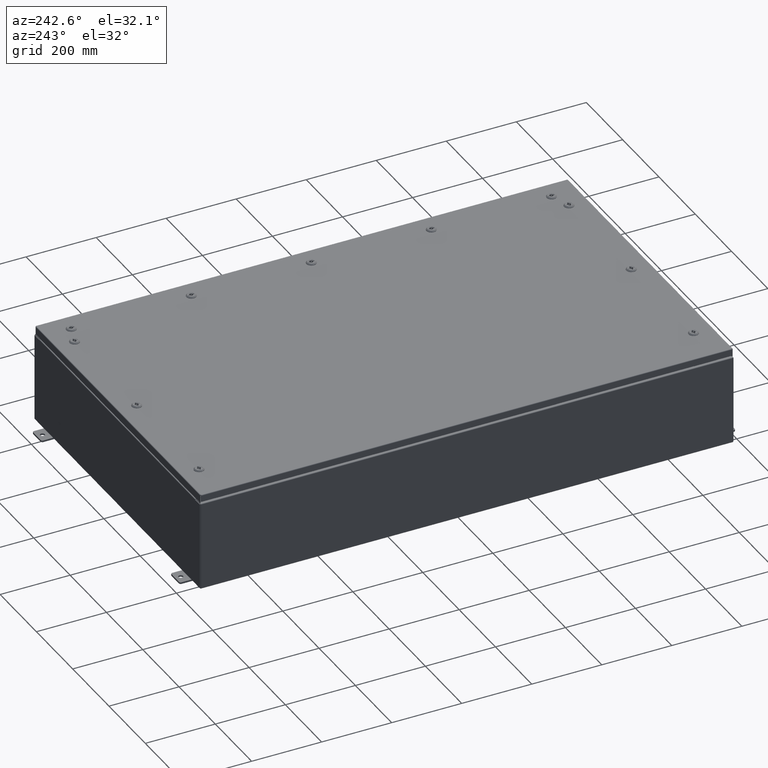
[diagram: clean part render]
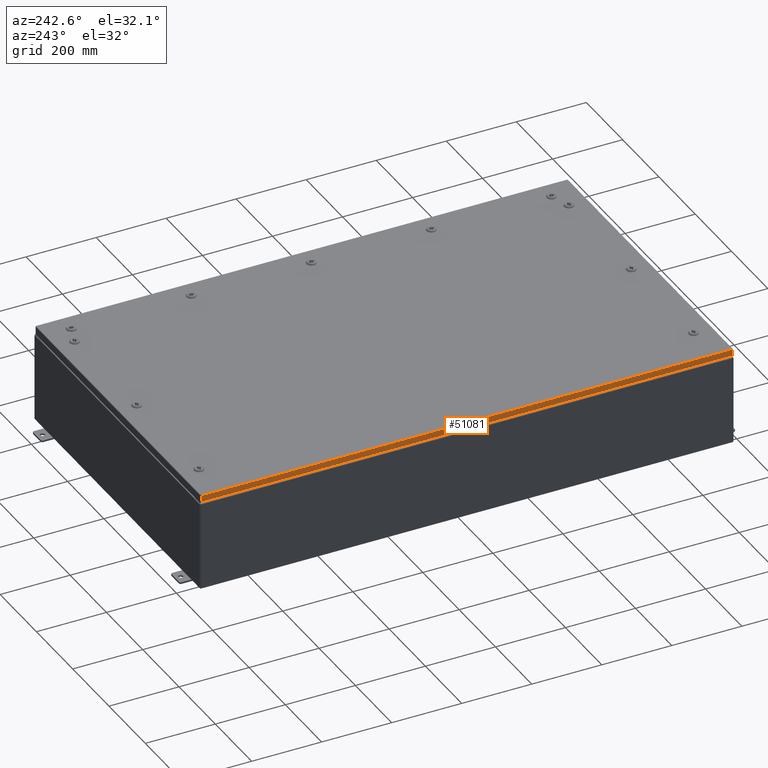
[diagram: same view with one face highlighted and labeled with its STEP entity id]
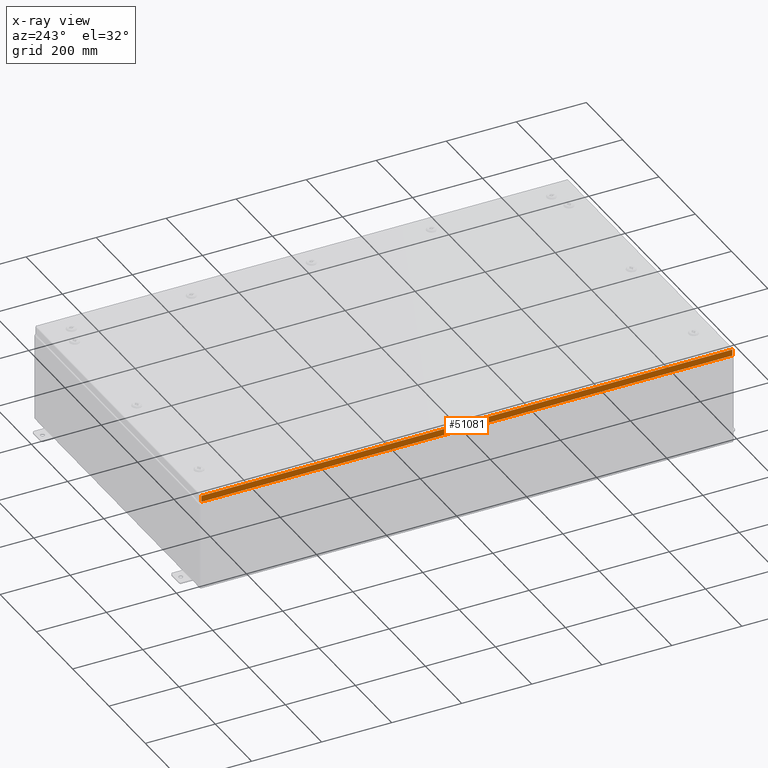
[diagram: x-ray of the same camera — body ghosted, the highlighted face saturated]
A machine part, auxiliary view. The second image highlights one B-rep face of the part: STEP entity #51081.
The next image is the same camera in x-ray: the body ghosted, the highlighted face saturated — about 0% of this face is hidden behind the body in this view.
In plain terms, the highlighted planar face has unit normal (1, -0, -0).
Its self-contained STEP definition (entity closure, byte-faithful):
#1546 = ORIENTED_EDGE ( 'NONE', *, *, #25695, .T. ) ;
#6697 = EDGE_CURVE ( 'NONE', #40351, #66077, #35893, .T. ) ;
#6930 = CARTESIAN_POINT ( 'NONE',  ( -17.93749999999999600, 29.84865786437628200, -0.7949999999999923800 ) ) ;
#8735 = LINE ( 'NONE', #42486, #38925 ) ;
#9609 = DIRECTION ( 'NONE',  ( -3.034122441942816500E-015, 6.982962677686267500E-015, -1.000000000000000000 ) ) ;
#10381 = DIRECTION ( 'NONE',  ( 7.300136601023501300E-017, 1.000000000000000000, 1.231898051422716000E-016 ) ) ;
#11423 = VERTEX_POINT ( 'NONE', #19480 ) ;
#13565 = PLANE ( 'NONE',  #16320 ) ;
#13910 = VECTOR ( 'NONE', #50829, 39.37007874015748100 ) ;
#14086 = EDGE_CURVE ( 'NONE', #11423, #40351, #29802, .T. ) ;
#15000 = DIRECTION ( 'NONE',  ( -3.034122441942816500E-015, 6.982962677686267500E-015, -1.000000000000000000 ) ) ;
#16320 = AXIS2_PLACEMENT_3D ( 'NONE', #66741, #18953, #56327 ) ;
#18347 = CARTESIAN_POINT ( 'NONE',  ( -17.93750000000000000, -29.84865786437625700, -0.08769999999999787700 ) ) ;
#18953 = DIRECTION ( 'NONE',  ( 1.000000000000000000, -7.300136601023464300E-017, -3.034122441942816500E-015 ) ) ;
#19480 = CARTESIAN_POINT ( 'NONE',  ( -17.93749999999999600, 29.84865786437627500, -0.08769999999999567000 ) ) ;
#21893 = CARTESIAN_POINT ( 'NONE',  ( -17.93750000000000000, -29.84865786437625700, -0.07469999999999976700 ) ) ;
#24324 = LINE ( 'NONE', #36331, #27689 ) ;
#25695 = EDGE_CURVE ( 'NONE', #11423, #56948, #24324, .T. ) ;
#27689 = VECTOR ( 'NONE', #9609, 39.37007874015748100 ) ;
#29802 = LINE ( 'NONE', #55941, #13910 ) ;
#35893 = LINE ( 'NONE', #21893, #53425 ) ;
#36331 = CARTESIAN_POINT ( 'NONE',  ( -17.93749999999999600, 29.84865786437627800, 2.631174488043270700E-013 ) ) ;
#38925 = VECTOR ( 'NONE', #10381, 39.37007874015748100 ) ;
#40351 = VERTEX_POINT ( 'NONE', #18347 ) ;
#42486 = CARTESIAN_POINT ( 'NONE',  ( -17.93750000000000000, -29.93749999999998900, -0.7949999999999997100 ) ) ;
#49202 = ORIENTED_EDGE ( 'NONE', *, *, #14086, .F. ) ;
#50829 = DIRECTION ( 'NONE',  ( -7.300136601023486500E-017, -1.000000000000000000, -7.300136601023502500E-017 ) ) ;
#51081 = ADVANCED_FACE ( 'NONE', ( #65735 ), #13565, .F. ) ;
#53425 = VECTOR ( 'NONE', #15000, 39.37007874015748100 ) ;
#53551 = EDGE_CURVE ( 'NONE', #66077, #56948, #8735, .T. ) ;
#55941 = CARTESIAN_POINT ( 'NONE',  ( -17.93750000000000000, -29.93749999999998900, -0.08770000000000004200 ) ) ;
#56327 = DIRECTION ( 'NONE',  ( -3.034122441942816500E-015, 0.0000000000000000000, -1.000000000000000000 ) ) ;
#56948 = VERTEX_POINT ( 'NONE', #6930 ) ;
#58990 = CARTESIAN_POINT ( 'NONE',  ( -17.93750000000000000, -29.84865786437625300, -0.7949999999999996000 ) ) ;
#60796 = EDGE_LOOP ( 'NONE', ( #49202, #1546, #63690, #68520 ) ) ;
#63690 = ORIENTED_EDGE ( 'NONE', *, *, #53551, .F. ) ;
#65735 = FACE_OUTER_BOUND ( 'NONE', #60796, .T. ) ;
#66077 = VERTEX_POINT ( 'NONE', #58990 ) ;
#66741 = CARTESIAN_POINT ( 'NONE',  ( -17.93749999999999600, 1.309462002808583700E-015, 5.468538495836083800E-014 ) ) ;
#68520 = ORIENTED_EDGE ( 'NONE', *, *, #6697, .F. ) ;